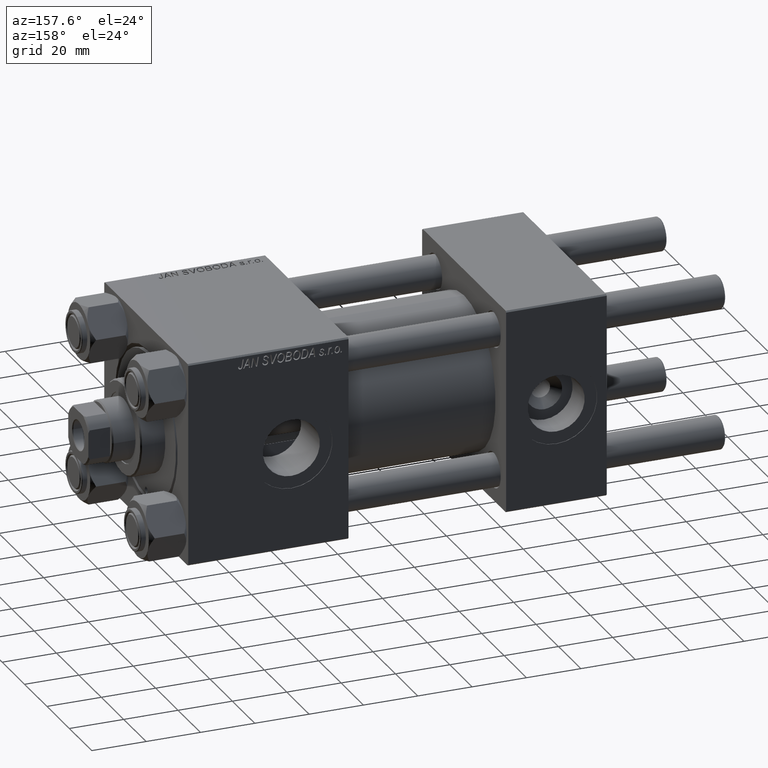
[diagram: clean part render]
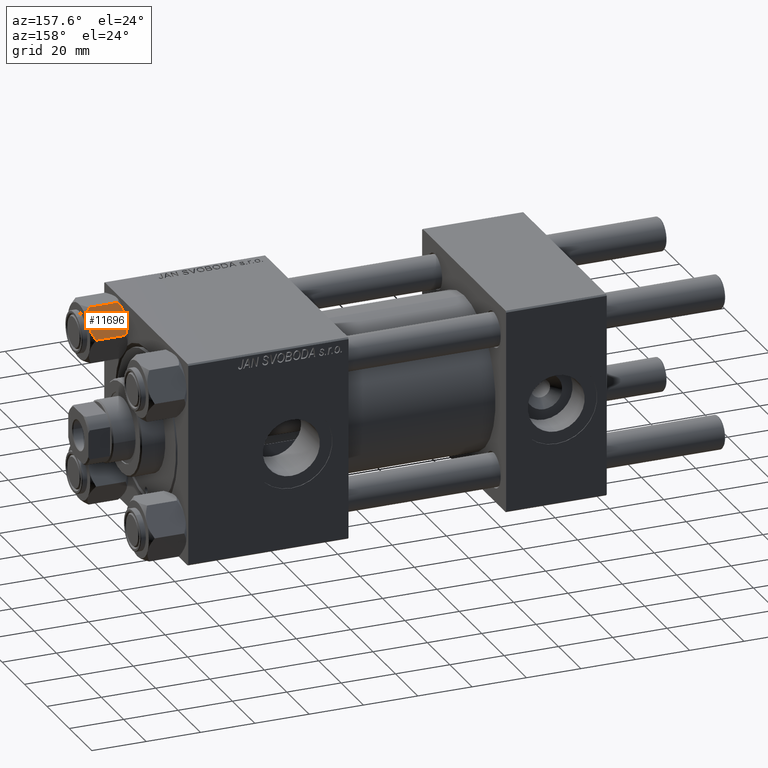
[diagram: same view with one face highlighted and labeled with its STEP entity id]
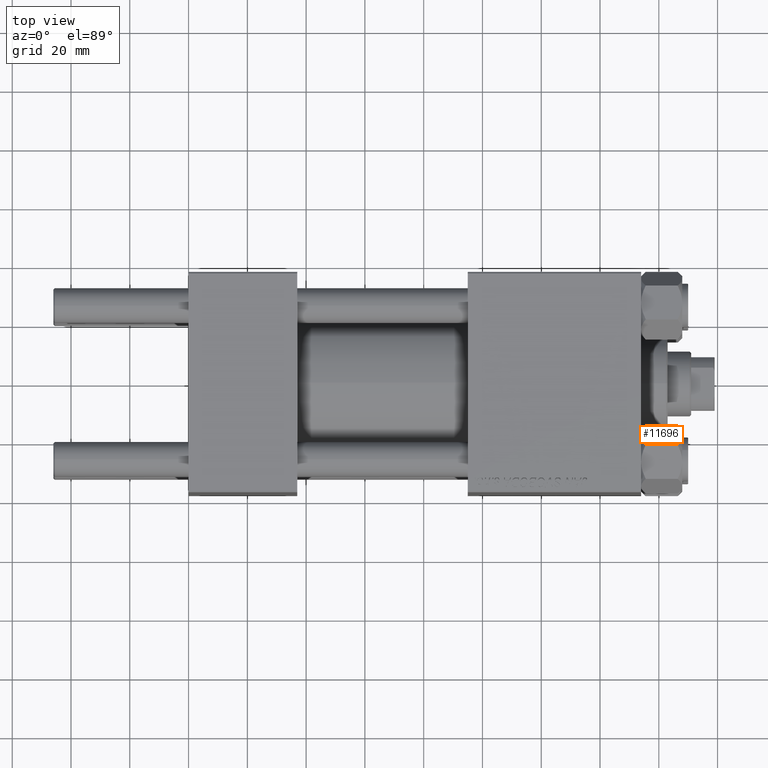
[diagram: same view with one face highlighted and labeled with its STEP entity id]
A machine part, auxiliary view. The second image highlights one B-rep face of the part: STEP entity #11696.
A second angle (top view) of the same face is appended — the face is thin or edge-on in the first view.
In plain terms, the highlighted planar face has unit normal (0, -0.8135, -0.5816).
Its self-contained STEP definition (entity closure, byte-faithful):
#13 = ORIENTED_EDGE ( 'NONE', *, *, #37867, .F. ) ;
#336 = CARTESIAN_POINT ( 'NONE',  ( 6.733375043383501790, -8.463882702393838997, -13.28854452935654074 ) ) ;
#406 = AXIS2_PLACEMENT_3D ( 'NONE', #40715, #6043, #13880 ) ;
#471 = ORIENTED_EDGE ( 'NONE', *, *, #44497, .F. ) ;
#1500 = VECTOR ( 'NONE', #40451, 1000.000000000000000 ) ;
#1636 = EDGE_CURVE ( 'NONE', #36528, #22532, #10375, .T. ) ;
#2476 = CARTESIAN_POINT ( 'NONE',  ( 11.61999999999999922, 7.017202701192663836E-15, -14.00000000000000000 ) ) ;
#4123 = CARTESIAN_POINT ( 'NONE',  ( 7.713000053756312369, -6.767122412062945180, -13.84547602999601068 ) ) ;
#4968 = B_SPLINE_CURVE_WITH_KNOTS ( 'NONE', 3,
 ( #28925, #14231, #9674, #13477, #22082, #5896 ),
 .UNSPECIFIED., .F., .F.,
 ( 4, 2, 4 ),
 ( 0.006022845781655591577, 0.009013049135303635023, 0.01200325248895168020 ),
 .UNSPECIFIED. ) ;
#5269 = CARTESIAN_POINT ( 'NONE',  ( 10.69859855102501456, -1.595914123792257389, -13.28585617404752917 ) ) ;
#5896 = CARTESIAN_POINT ( 'NONE',  ( 11.61999999999999922, 7.247075248837498561E-15, -1.556784808024820999 ) ) ;
#6043 = DIRECTION ( 'NONE',  ( -0.8660254037844390407, 0.4999999999999992784, 0.000000000000000000 ) ) ;
#9674 = CARTESIAN_POINT ( 'NONE',  ( 9.716999946243694453, -3.296092779912219495, -0.1545239700039907904 ) ) ;
#9827 = PLANE ( 'NONE',  #406 ) ;
#9902 = CARTESIAN_POINT ( 'NONE',  ( 7.455303369716811623, -7.213466161761380668, -0.3002673809867457688 ) ) ;
#10375 = B_SPLINE_CURVE_WITH_KNOTS ( 'NONE', 3,
 ( #15010, #31214, #4123, #336, #11199, #39301 ),
 .UNSPECIFIED., .F., .F.,
 ( 4, 2, 4 ),
 ( 0.006022845781655584638, 0.009013049135303633289, 0.01200325248895168020 ),
 .UNSPECIFIED. ) ;
#11199 = CARTESIAN_POINT ( 'NONE',  ( 6.265018354709780191, -9.275100283241444643, -12.89823354668503796 ) ) ;
#11696 = ADVANCED_FACE ( 'NONE', ( #29329 ), #9827, .F. ) ;
#12400 = VECTOR ( 'NONE', #38764, 1000.000000000000000 ) ;
#12843 = CARTESIAN_POINT ( 'NONE',  ( 8.969430103550388722, -4.590921729663307360, -13.99999999999999822 ) ) ;
#13477 = CARTESIAN_POINT ( 'NONE',  ( 10.69662495661650325, -1.599332489581326122, -0.7114554706434562670 ) ) ;
#13833 = VERTEX_POINT ( 'NONE', #24521 ) ;
#13880 = DIRECTION ( 'NONE',  ( -0.4999999999999992784, -0.8660254037844390407, 0.000000000000000000 ) ) ;
#14231 = CARTESIAN_POINT ( 'NONE',  ( 9.220295946303432189, -4.156409344131445138, -5.153348451095161685E-15 ) ) ;
#14485 = CARTESIAN_POINT ( 'NONE',  ( 8.714999999999999858, -5.031607595987580339, -14.00000000000000000 ) ) ;
#15010 = CARTESIAN_POINT ( 'NONE',  ( 8.714999999999999858, -5.031607595987580339, -14.00000000000000000 ) ) ;
#16471 = VERTEX_POINT ( 'NONE', #30630 ) ;
#16942 = ORIENTED_EDGE ( 'NONE', *, *, #32569, .F. ) ;
#17054 = VERTEX_POINT ( 'NONE', #33234 ) ;
#17394 = CARTESIAN_POINT ( 'NONE',  ( 11.61999999999999922, 7.035126978385350964E-15, -12.44321519197517922 ) ) ;
#18512 = CARTESIAN_POINT ( 'NONE',  ( 7.700834831386349499, -6.788193195293088955, -0.1903979688073487719 ) ) ;
#20510 = ORIENTED_EDGE ( 'NONE', *, *, #36551, .F. ) ;
#20945 = CARTESIAN_POINT ( 'NONE',  ( 11.16445427487471598, -0.7890283410877895198, -12.89876091710045891 ) ) ;
#22082 = CARTESIAN_POINT ( 'NONE',  ( 11.16498164529022219, -0.7881149087337221415, -1.101766453314959815 ) ) ;
#22532 = VERTEX_POINT ( 'NONE', #31048 ) ;
#23023 = B_SPLINE_CURVE_WITH_KNOTS ( 'NONE', 3,
 ( #17394, #20945, #5269, #40429, #24985, #44458, #12843, #36372 ),
 .UNSPECIFIED., .F., .F.,
 ( 4, 2, 2, 4 ),
 ( 2.544312114905220024E-07, 0.003011550106433536454, 0.004517197944044560980, 0.006022845781655584638 ),
 .UNSPECIFIED. ) ;
#24401 = ORIENTED_EDGE ( 'NONE', *, *, #47139, .T. ) ;
#24521 = CARTESIAN_POINT ( 'NONE',  ( 8.714999999999999858, -5.031607595987580339, 0.000000000000000000 ) ) ;
#24985 = CARTESIAN_POINT ( 'NONE',  ( 9.729165168613659986, -3.275021996682075276, -13.80960203119265195 ) ) ;
#25027 = VERTEX_POINT ( 'NONE', #26631 ) ;
#26105 = CARTESIAN_POINT ( 'NONE',  ( 8.460569896449625205, -5.472293462311858647, -5.260074602449206683E-15 ) ) ;
#26631 = CARTESIAN_POINT ( 'NONE',  ( 5.810000000000005826, -10.06321519197517489, -1.556784808024824107 ) ) ;
#27467 = EDGE_LOOP ( 'NONE', ( #471, #24401, #16942, #13, #20510, #46935 ) ) ;
#27630 = CARTESIAN_POINT ( 'NONE',  ( 5.810000000000005826, -10.06321519197517489, -14.00000000000000000 ) ) ;
#28925 = CARTESIAN_POINT ( 'NONE',  ( 8.714999999999999858, -5.031607595987580339, 0.000000000000000000 ) ) ;
#29329 = FACE_OUTER_BOUND ( 'NONE', #27467, .T. ) ;
#30630 = CARTESIAN_POINT ( 'NONE',  ( 11.61999999999999922, 7.247075248837498561E-15, -1.556784808024820999 ) ) ;
#31048 = CARTESIAN_POINT ( 'NONE',  ( 5.810000000000006715, -10.06321519197517489, -12.44321519197517745 ) ) ;
#31214 = CARTESIAN_POINT ( 'NONE',  ( 8.209704053696578185, -5.906805847843720869, -14.00000000000000178 ) ) ;
#32569 = EDGE_CURVE ( 'NONE', #13833, #16471, #4968, .T. ) ;
#32942 = CARTESIAN_POINT ( 'NONE',  ( 6.265545725125289067, -9.274186850887373268, -1.101239082899541755 ) ) ;
#33234 = CARTESIAN_POINT ( 'NONE',  ( 11.61999999999999922, 7.035126978385350964E-15, -12.44321519197517922 ) ) ;
#33682 = CARTESIAN_POINT ( 'NONE',  ( 8.714999999999999858, -5.031607595987580339, 0.000000000000000000 ) ) ;
#36372 = CARTESIAN_POINT ( 'NONE',  ( 8.714999999999999858, -5.031607595987580339, -14.00000000000000000 ) ) ;
#36528 = VERTEX_POINT ( 'NONE', #14485 ) ;
#36551 = EDGE_CURVE ( 'NONE', #22532, #25027, #39025, .T. ) ;
#37867 = EDGE_CURVE ( 'NONE', #25027, #13833, #48743, .T. ) ;
#38764 = DIRECTION ( 'NONE',  ( -0.000000000000000000, -0.000000000000000000, 1.000000000000000000 ) ) ;
#39025 = LINE ( 'NONE', #27630, #12400 ) ;
#39301 = CARTESIAN_POINT ( 'NONE',  ( 5.810000000000006715, -10.06321519197517489, -12.44321519197517745 ) ) ;
#40429 = CARTESIAN_POINT ( 'NONE',  ( 9.974696630283192533, -2.849749030213785783, -13.69973261901325223 ) ) ;
#40451 = DIRECTION ( 'NONE',  ( -0.000000000000000000, -0.000000000000000000, 1.000000000000000000 ) ) ;
#40715 = CARTESIAN_POINT ( 'NONE',  ( 11.61999999999999922, 7.017202701192663836E-15, -14.00000000000000000 ) ) ;
#40790 = CARTESIAN_POINT ( 'NONE',  ( 8.202333004087906332, -5.919572880271047666, -0.03994118060691484451 ) ) ;
#40939 = LINE ( 'NONE', #2476, #1500 ) ;
#44458 = CARTESIAN_POINT ( 'NONE',  ( 9.227666995912102266, -4.143642311704116565, -13.96005881939308324 ) ) ;
#44497 = EDGE_CURVE ( 'NONE', #17054, #36528, #23023, .T. ) ;
#44575 = CARTESIAN_POINT ( 'NONE',  ( 6.731401448974994928, -8.467301068182910839, -0.7141438259524746091 ) ) ;
#45073 = CARTESIAN_POINT ( 'NONE',  ( 5.810000000000005826, -10.06321519197517489, -1.556784808024824107 ) ) ;
#46935 = ORIENTED_EDGE ( 'NONE', *, *, #1636, .F. ) ;
#47139 = EDGE_CURVE ( 'NONE', #17054, #16471, #40939, .T. ) ;
#48743 = B_SPLINE_CURVE_WITH_KNOTS ( 'NONE', 3,
 ( #45073, #32942, #44575, #9902, #18512, #40790, #26105, #33682 ),
 .UNSPECIFIED., .F., .F.,
 ( 4, 2, 2, 4 ),
 ( 2.544312114906334931E-07, 0.003011550106433540791, 0.004517197944044565316, 0.006022845781655591577 ),
 .UNSPECIFIED. ) ;